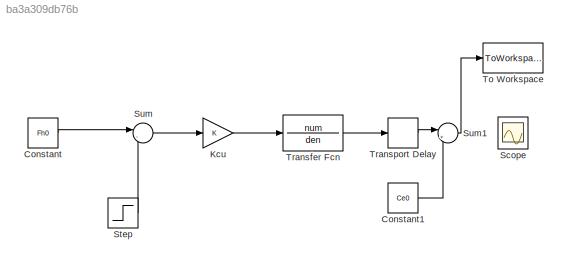
MODEL slx_ba3a309db76b
KIND model
CONFIG AbsTol = auto
CONFIG EnableMultiTasking = on
CONFIG FixedStep = auto
CONFIG MaxStep = 0.1
CONFIG MinStep = auto
CONFIG RelTol = 1e-6
CONFIG SampleTimeConstraint = Unconstrained
CONFIG SolverName = ode45
CONFIG StartTime = 0.0
CONFIG StopTime = 1000
BLOCK [Constant] Constant
  Value = Fh0
BLOCK [Constant] Constant1
  Value = Ce0
BLOCK [Gain] Kcu
BLOCK [Scope] Scope
  Floating = off
  NumInputPorts = 1
  Ports = [1]
  ScopeSpecificationString = C++SS(StrPVP('Location','[6, 48, 1286, 859]'),StrPVP('Open','off'),StrPVP('ZoomMode','xonly'),MxPVP('AxesTitles',54,'struct(''axes1'',''%<SignalLabel>'')'),StrPVP('YMin','0.772488'),StrPVP('YMax','0.772498'),StrPVP('DataFormat','StructureWithTime'),StrPVP('LimitDataPoints','off'),StrPVP('BlockParamSampleTime','0'),StrPVP('Decimation','1'),StrPVP('BlockParamSampleInput','off'))
BLOCK [Step] Step
  After = Fh0*1.04
  Before = Fh0
  SampleTime = 0
  Time = 100
BLOCK [Sum] Sum
  Inputs = |-+
  Ports = [2, 1]
BLOCK [Sum] Sum1
  Inputs = |++
  Ports = [2, 1]
BLOCK [ToWorkspace] To Workspace
  MaxDataPoints = inf
  Ports = [1]
  VariableName = Salida_ver
BLOCK [TransferFcn] Transfer Fcn
  Denominator = den
  Numerator = num
BLOCK [TransportDelay] Transport Delay
  DelayTime = 21.3
  Ports = [1, 1]
LINE Constant1:1 -> Sum1:2
LINE Constant:1 -> Sum:1
LINE Kcu:1 -> Transfer Fcn:1
LINE Step:1 -> Sum:2
LINE Sum1:1 -> To Workspace:1
LINE Sum:1 -> Kcu:1
LINE Transfer Fcn:1 -> Transport Delay:1
LINE Transport Delay:1 -> Sum1:1
